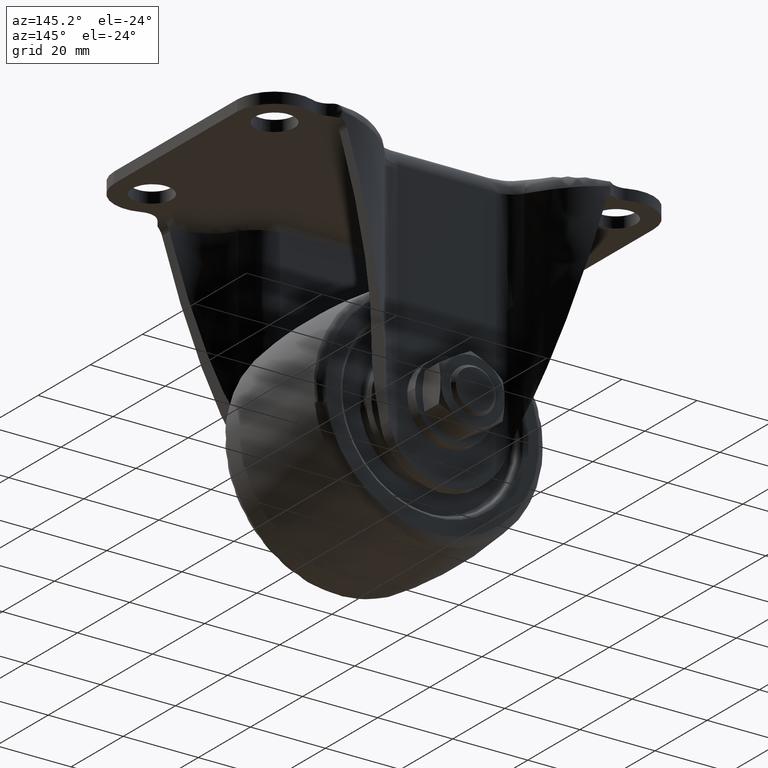
[diagram: clean part render]
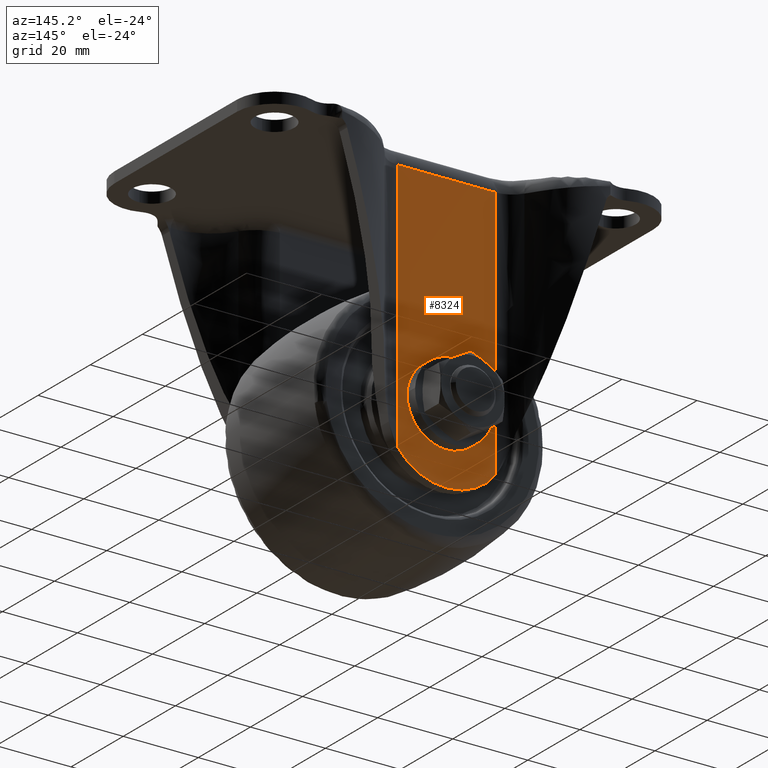
[diagram: same view with one face highlighted and labeled with its STEP entity id]
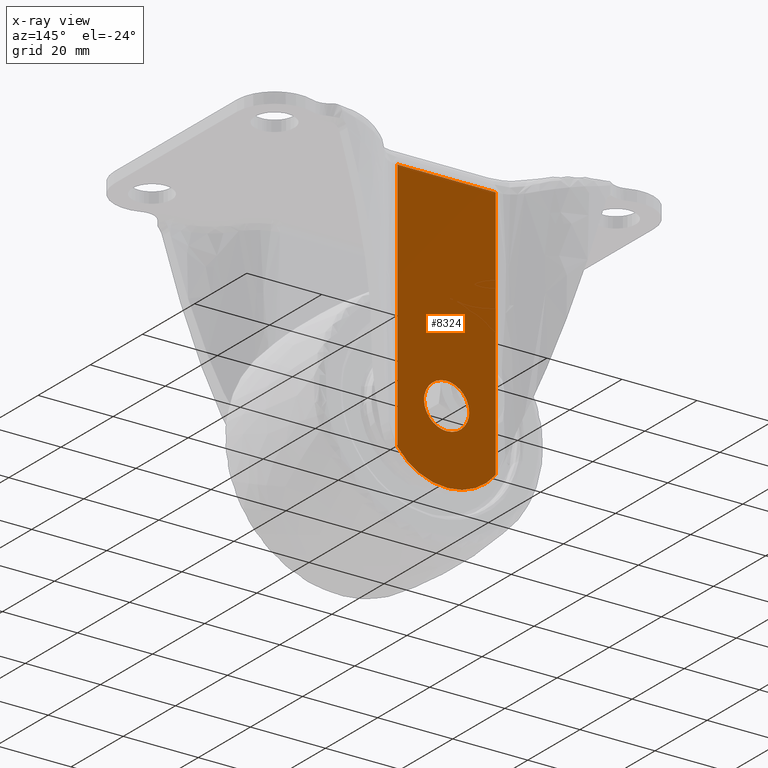
[diagram: x-ray of the same camera — body ghosted, the highlighted face saturated]
A machine part, auxiliary view. The second image highlights one B-rep face of the part: STEP entity #8324.
The next image is the same camera in x-ray: the body ghosted, the highlighted face saturated — about 0% of this face is hidden behind the body in this view.
In plain terms, the highlighted face is a freeform B-spline surface patch.
Its self-contained STEP definition (entity closure, byte-faithful):
#3452=CARTESIAN_POINT('',(6.009866157612427,24.0,-59.552446478718451));
#3453=VERTEX_POINT('',#3452);
#3459=CARTESIAN_POINT('',(0.000095000000016,24.0,-65.510000000000005));
#3460=VERTEX_POINT('',#3459);
#3461=CARTESIAN_POINT('',(6.009866157612428,24.0,-59.552446478718451));
#3462=CARTESIAN_POINT('',(5.957875375305824,24.0,-65.509999999999991));
#3463=CARTESIAN_POINT('',(0.000095000000016,24.0,-65.510000000000005));
#3471=(BOUNDED_CURVE()B_SPLINE_CURVE(2,(#3461,#3462,#3463),.UNSPECIFIED.,.F.,.U.)B_SPLINE_CURVE_WITH_KNOTS((3,3),(0.251539894345926,0.500000000000000),.UNSPECIFIED.)CURVE()GEOMETRIC_REPRESENTATION_ITEM()RATIONAL_B_SPLINE_CURVE((0.996414028075090,0.708910879632991,1.0))REPRESENTATION_ITEM(''));
#3472=EDGE_CURVE('',#3453,#3460,#3471,.T.);
#3474=CARTESIAN_POINT('',(-6.009676157612395,24.0,-59.447553521281549));
#3475=VERTEX_POINT('',#3474);
#3476=CARTESIAN_POINT('',(0.000095000000016,24.0,-65.510000000000005));
#3477=CARTESIAN_POINT('',(-6.009904999999983,23.999999999999996,-65.510000000000005));
#3478=CARTESIAN_POINT('',(-6.009904999999984,24.0,-59.500000000000000));
#3479=CARTESIAN_POINT('',(-6.009904999999984,24.0,-59.473776261380948));
#3480=CARTESIAN_POINT('',(-6.009676157612396,24.000000000000007,-59.447553521281549));
#3488=(BOUNDED_CURVE()B_SPLINE_CURVE(2,(#3476,#3477,#3478,#3479,#3480),.UNSPECIFIED.,.F.,.U.)B_SPLINE_CURVE_WITH_KNOTS((3,2,3),(0.500000000000000,0.750000000000000,0.751539894345926),.UNSPECIFIED.)CURVE()GEOMETRIC_REPRESENTATION_ITEM()RATIONAL_B_SPLINE_CURVE((1.0,0.707106781186548,1.0,0.998195901553556,0.996414028075090))REPRESENTATION_ITEM(''));
#3489=EDGE_CURVE('',#3460,#3475,#3488,.T.);
#3565=CARTESIAN_POINT('',(0.000095000000016,24.0,-53.490000000000002));
#3566=VERTEX_POINT('',#3565);
#3567=CARTESIAN_POINT('',(-6.009676157612397,24.0,-59.447553521281563));
#3568=CARTESIAN_POINT('',(-5.957685375305793,24.0,-53.489999999999995));
#3569=CARTESIAN_POINT('',(0.000095000000016,24.0,-53.490000000000002));
#3577=(BOUNDED_CURVE()B_SPLINE_CURVE(2,(#3567,#3568,#3569),.UNSPECIFIED.,.F.,.U.)B_SPLINE_CURVE_WITH_KNOTS((3,3),(0.751539894345926,1.0),.UNSPECIFIED.)CURVE()GEOMETRIC_REPRESENTATION_ITEM()RATIONAL_B_SPLINE_CURVE((0.996414028075090,0.708910879632991,1.0))REPRESENTATION_ITEM(''));
#3578=EDGE_CURVE('',#3475,#3566,#3577,.T.);
#3580=CARTESIAN_POINT('',(0.000095000000016,24.0,-53.490000000000002));
#3581=CARTESIAN_POINT('',(6.010095000000016,23.999999999999996,-53.489999999999995));
#3582=CARTESIAN_POINT('',(6.010095000000016,24.0,-59.500000000000000));
#3583=CARTESIAN_POINT('',(6.010095000000017,24.0,-59.526223738619038));
#3584=CARTESIAN_POINT('',(6.009866157612430,24.000000000000007,-59.552446478718458));
#3592=(BOUNDED_CURVE()B_SPLINE_CURVE(2,(#3580,#3581,#3582,#3583,#3584),.UNSPECIFIED.,.F.,.U.)B_SPLINE_CURVE_WITH_KNOTS((3,2,3),(0.0,0.250000000000000,0.251539894345926),.UNSPECIFIED.)CURVE()GEOMETRIC_REPRESENTATION_ITEM()RATIONAL_B_SPLINE_CURVE((1.0,0.707106781186548,1.0,0.998195901553556,0.996414028075090))REPRESENTATION_ITEM(''));
#3593=EDGE_CURVE('',#3566,#3453,#3592,.T.);
#6263=CARTESIAN_POINT('',(13.112529000000020,24.0,-72.615372927514201));
#6264=VERTEX_POINT('',#6263);
#6265=CARTESIAN_POINT('',(13.112529000000020,24.0,-5.0));
#6266=VERTEX_POINT('',#6265);
#6267=CARTESIAN_POINT('',(13.112529000000020,24.0,-72.615372927514201));
#6268=CARTESIAN_POINT('',(13.112529000000020,24.0,-5.0));
#6269=QUASI_UNIFORM_CURVE('',1,(#6267,#6268),.UNSPECIFIED.,.F.,.U.);
#6270=EDGE_CURVE('',#6264,#6266,#6269,.T.);
#6588=CARTESIAN_POINT('',(-13.112339000000080,24.0,-5.0));
#6589=VERTEX_POINT('',#6588);
#6662=CARTESIAN_POINT('',(-13.112339000000080,24.0,-5.0));
#6663=CARTESIAN_POINT('',(13.112529000000020,24.0,-5.0));
#6664=QUASI_UNIFORM_CURVE('',1,(#6662,#6663),.UNSPECIFIED.,.F.,.U.);
#6665=EDGE_CURVE('',#6589,#6266,#6664,.T.);
#8090=CARTESIAN_POINT('',(-13.112339000000080,24.0,-72.615621673442291));
#8091=VERTEX_POINT('',#8090);
#8105=CARTESIAN_POINT('',(13.112529000000020,24.0,-72.615372927514201));
#8106=CARTESIAN_POINT('',(12.298274435806499,23.999999999999911,-73.682005774196099));
#8107=CARTESIAN_POINT('',(10.574198851203290,24.000000000000139,-75.443975576162913));
#8108=CARTESIAN_POINT('',(7.709763503171820,23.999999999999911,-77.296588325429795));
#8109=CARTESIAN_POINT('',(5.215698040884086,23.999999999999989,-78.314347590518878));
#8110=CARTESIAN_POINT('',(2.875639940514508,24.000000000000298,-78.896868061133034));
#8111=CARTESIAN_POINT('',(0.515587267030258,23.999999999998799,-79.160520733576107));
#8112=CARTESIAN_POINT('',(-2.213930660551393,24.000000000000661,-79.033168915560736));
#8113=CARTESIAN_POINT('',(-5.114995922968507,23.999999999999460,-78.388000657376224));
#8114=CARTESIAN_POINT('',(-7.774953350068784,24.000000000000568,-77.246288358087355));
#8115=CARTESIAN_POINT('',(-10.593361383885870,23.999999999999378,-75.409220079680637));
#8116=CARTESIAN_POINT('',(-12.226312144893379,24.000000000000188,-73.776455374337985));
#8117=CARTESIAN_POINT('',(-13.112339000000080,24.0,-72.615621673442291));
#8118=B_SPLINE_CURVE_WITH_KNOTS('',3,(#8105,#8106,#8107,#8108,#8109,#8110,#8111,#8112,#8113,#8114,#8115,#8116,#8117),.UNSPECIFIED.,.F.,.U.,(4,1,1,1,1,1,1,1,1,1,4),(0.000000103568770,4.025615324630625,7.340851918791131,10.182475154632920,12.076920880596420,14.563352835486659,17.286513150400712,20.246526565381259,23.443371116565419,25.929811237805762,30.310618016158731),.UNSPECIFIED.);
#8119=EDGE_CURVE('',#6264,#8091,#8118,.T.);
#8303=CARTESIAN_POINT('',(-14.422271105771211,24.0,-1.298714839803528));
#8304=CARTESIAN_POINT('',(-14.422271105771211,24.0,-82.801093029915847));
#8305=CARTESIAN_POINT('',(14.422461809176919,24.0,-1.298714839803528));
#8306=CARTESIAN_POINT('',(14.422461809176919,24.0,-82.801093029915847));
#8307=B_SPLINE_SURFACE_WITH_KNOTS('',1,1,((#8303,#8305),(#8304,#8306)),.UNSPECIFIED.,.F.,.F.,.U.,(2,2),(2,2),(0.0,81.502378190112324),(0.0,28.844732914948128),.UNSPECIFIED.);
#8308=CARTESIAN_POINT('',(-13.112339000000080,24.0,-72.615621673442291));
#8309=CARTESIAN_POINT('',(-13.112339000000080,24.0,-5.0));
#8310=QUASI_UNIFORM_CURVE('',1,(#8308,#8309),.UNSPECIFIED.,.F.,.U.);
#8311=EDGE_CURVE('',#8091,#6589,#8310,.T.);
#8312=ORIENTED_EDGE('',*,*,#8311,.T.);
#8313=ORIENTED_EDGE('',*,*,#6665,.T.);
#8314=ORIENTED_EDGE('',*,*,#6270,.F.);
#8315=ORIENTED_EDGE('',*,*,#8119,.T.);
#8316=EDGE_LOOP('',(#8312,#8313,#8314,#8315));
#8317=FACE_OUTER_BOUND('',#8316,.T.);
#8318=ORIENTED_EDGE('',*,*,#3489,.F.);
#8319=ORIENTED_EDGE('',*,*,#3472,.F.);
#8320=ORIENTED_EDGE('',*,*,#3593,.F.);
#8321=ORIENTED_EDGE('',*,*,#3578,.F.);
#8322=EDGE_LOOP('',(#8318,#8319,#8320,#8321));
#8323=FACE_BOUND('',#8322,.T.);
#8324=ADVANCED_FACE('',(#8317,#8323),#8307,.F.);